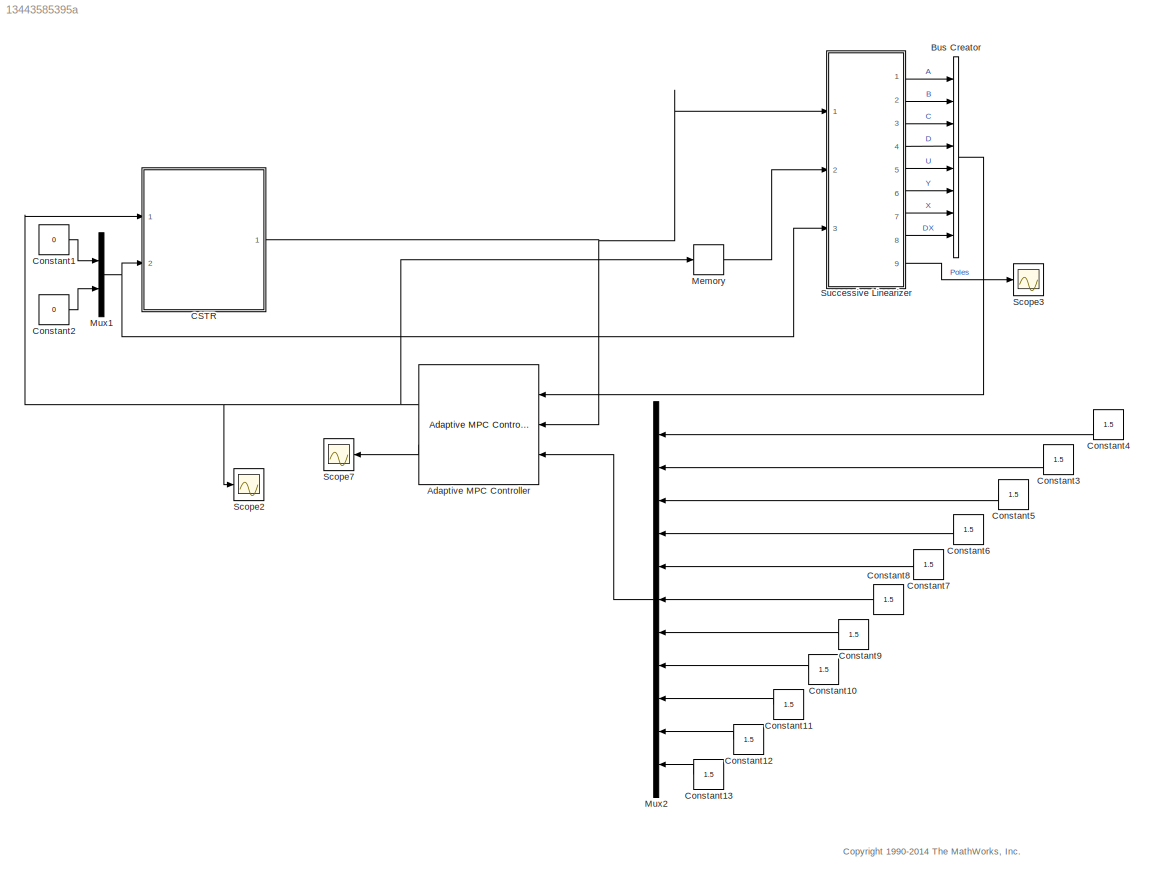
MODEL slx_13443585395a
KIND model
CONFIG AbsTol = auto
CONFIG EnableMultiTasking = off
CONFIG FixedStep = auto
CONFIG MaxStep = 0.5*Ts
CONFIG MinStep = auto
CONFIG RelTol = 1e-3
CONFIG SampleTimeConstraint = Unconstrained
CONFIG Solver = FixedStepAuto
CONFIG SolverName = FixedStepAuto
CONFIG StartTime = 0
CONFIG StopTime = 75
BLOCK [Reference] Adaptive MPC Controller  REF=mpclib/Adaptive MPC Controller  (lib defined in mdl_ae329e0e0455)
  Ports = [3, 2]
  SCDEnableBlockLinearizationSpecification = on
  SourceBlock = mpclib/Adaptive MPC Controller
  SourceProductBaseCode = MP
  SourceProductName = Model Predictive Control Toolbox
  SourceType = Adaptive MPC
BLOCK [BusCreator] Bus Creator
  DisplayOption = bar
  InheritFromInputs = on
  Inputs = 8
  Ports = [8, 1]
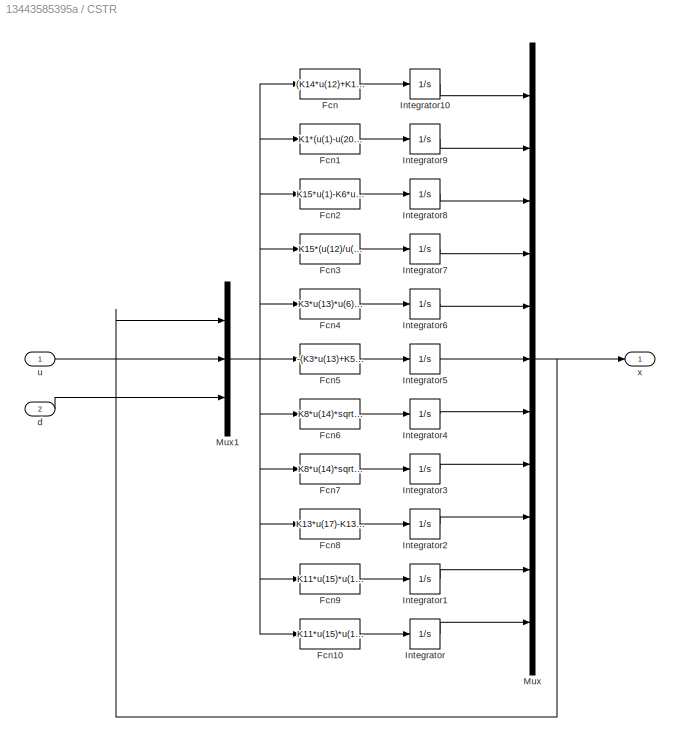
BLOCK [SubSystem] CSTR
  Ports = [2, 1]
  RequestExecContextInheritance = off
  Variant = off
BLOCK [Fcn] CSTR/Fcn
  Expr = (K14*u(12)+K1)*(u(20)-u(1))+K1*(u(8)-u(2))
BLOCK [Fcn] CSTR/Fcn1
  Expr = K1*(u(1)-u(20))+(K2*u(21)*sqrt(u(7))-K1)*(u(8)-u(2))
BLOCK [Fcn] CSTR/Fcn10
  Expr = K11*u(15)*u(1)-K11*u(15)*u(11)-K12*u(11)+K12*u(9)
BLOCK [Fcn] CSTR/Fcn2
  Expr = K15*u(1)-K6*u(14)*sqrt(u(3))
BLOCK [Fcn] CSTR/Fcn3
  Expr = K15*(u(12)/u(3))*u(1)-(K15*(u(12)/u(3))+K7/u(3))*u(4)+K7*u(6)/u(3)
BLOCK [Fcn] CSTR/Fcn4
  Expr = K3*u(13)*u(6)-K3*u(13)*u(5)+K4*u(16)
BLOCK [Fcn] CSTR/Fcn5
  Expr = -(K3*u(13)+K5)*u(6)+K3*u(13)*u(5)+K5*u(4)
BLOCK [Fcn] CSTR/Fcn6
  Expr = K8*u(14)*sqrt(u(3))-K9*u(21)*sqrt(u(7))
BLOCK [Fcn] CSTR/Fcn7
  Expr = K8*u(14)*sqrt((u(3))/u(7)*u(4)-K8*u(14)*sqrt(u(3))/u(7)*u(8)+K10*u(18)
BLOCK [Fcn] CSTR/Fcn8
  Expr = K13*u(17)-K13*u(18)+K13*u(19)
BLOCK [Fcn] CSTR/Fcn9
  Expr = K11*u(15)*u(11)-K11*u(15)*u(10)+K4*u(17)
BLOCK [Integrator] CSTR/Integrator
  Ports = [1, 1]
BLOCK [Integrator] CSTR/Integrator1
  Ports = [1, 1]
BLOCK [Integrator] CSTR/Integrator10
  Ports = [1, 1]
BLOCK [Integrator] CSTR/Integrator2
  Ports = [1, 1]
BLOCK [Integrator] CSTR/Integrator3
  Ports = [1, 1]
BLOCK [Integrator] CSTR/Integrator4
  Ports = [1, 1]
BLOCK [Integrator] CSTR/Integrator5
  Ports = [1, 1]
BLOCK [Integrator] CSTR/Integrator6
  Ports = [1, 1]
BLOCK [Integrator] CSTR/Integrator7
  Ports = [1, 1]
BLOCK [Integrator] CSTR/Integrator8
  Ports = [1, 1]
BLOCK [Integrator] CSTR/Integrator9
  Ports = [1, 1]
BLOCK [Mux] CSTR/Mux
  DisplayOption = bar
  Inputs = 11
  Ports = [11, 1]
BLOCK [Mux] CSTR/Mux1
  DisplayOption = bar
  Inputs = 3
  Ports = [3, 1]
BLOCK [Inport] CSTR/d
  IconDisplay = Port number
  Port = 2
BLOCK [Inport] CSTR/u
  IconDisplay = Port number
BLOCK [Outport] CSTR/x
  IconDisplay = Port number
BLOCK [Constant] Constant1
  Value = 0
BLOCK [Constant] Constant10
  Value = 1.5
BLOCK [Constant] Constant11
  Value = 1.5
BLOCK [Constant] Constant12
  Value = 1.5
BLOCK [Constant] Constant13
  Value = 1.5
BLOCK [Constant] Constant2
  Value = 0
BLOCK [Constant] Constant3
  Value = 1.5
BLOCK [Constant] Constant4
  Value = 1.5
BLOCK [Constant] Constant5
  Value = 1.5
BLOCK [Constant] Constant6
  Value = 1.5
BLOCK [Constant] Constant7
  Value = 1.5
BLOCK [Constant] Constant8
  Value = 1.5
BLOCK [Constant] Constant9
  Value = 1.5
BLOCK [Memory] Memory
  X0 = u0
BLOCK [Mux] Mux1
  DisplayOption = bar
  Inputs = 2
  Ports = [2, 1]
BLOCK [Mux] Mux2
  DisplayOption = bar
  Inputs = 11
  Ports = [11, 1]
BLOCK [Scope] Scope2
  NumInputPorts = 1
  Ports = [1]
  ScopeSpecificationString = Simulink.scopes.TimeScopeBlockCfg('CurrentConfiguration', extmgr.ConfigurationSet(extmgr.Configuration('Core','General UI',true),extmgr.Configuration('Core','Source UI',true),extmgr.Configuration('Sources','WiredSimulink',true,'DataLoggingVariableName','ScopeData2'),extmgr.Configuration('Visuals','Time Domain',true,'SerializedDisplays',{struct('MinYLimReal','-0.23174','MaxYLimReal','2.08568','YLab...<+1468ch>
BLOCK [Scope] Scope3
  NumInputPorts = 1
  Ports = [1]
  ScopeSpecificationString = Simulink.scopes.TimeScopeBlockCfg('CurrentConfiguration', extmgr.ConfigurationSet(extmgr.Configuration('Core','General UI',true),extmgr.Configuration('Core','Source UI',true),extmgr.Configuration('Sources','WiredSimulink',true,'DataLoggingVariableName','ScopeData1'),extmgr.Configuration('Visuals','Time Domain',true,'SerializedDisplays',{struct('MinYLimReal','0.75515','MaxYLimReal','1.02721','YLabe...<+1403ch>
BLOCK [Scope] Scope7
  NumInputPorts = 1
  Ports = [1]
  ScopeSpecificationString = Simulink.scopes.TimeScopeBlockCfg('CurrentConfiguration', extmgr.ConfigurationSet(extmgr.Configuration('Core','General UI',true),extmgr.Configuration('Core','Source UI',true),extmgr.Configuration('Sources','WiredSimulink',true,'DataLoggingVariableName','ScopeData1'),extmgr.Configuration('Visuals','Time Domain',true,'SerializedDisplays',{struct('MinYLimReal','-6.94325','MaxYLimReal','37.96247','YLa...<+1547ch>
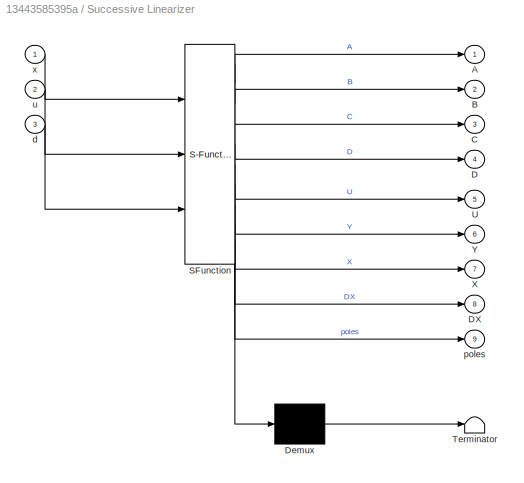
BLOCK [SubSystem] Successive Linearizer
  ErrorFcn = Stateflow.Translate.translate
  PermitHierarchicalResolution = ExplicitOnly
  Ports = [3, 9]
  RequestExecContextInheritance = off
  SFBlockType = MATLAB Function
  SystemSampleTime = Ts
  TreatAsAtomicUnit = on
  Variant = off
BLOCK [Demux] Successive Linearizer/ Demux 
  Outputs = 1
  Ports = [1, 1]
BLOCK [S-Function] Successive Linearizer/ SFunction 
  EnableBusSupport = on
  FunctionName = sf_sfun
  PortCounts = [3 10]
  Ports = [3, 10]
  SFcnIsStateOwnerBlock = off
  SFunctionDeploymentMode = off
  Tag = Stateflow S-Function AdaptiveControlBuilding 2
BLOCK [Terminator] Successive Linearizer/ Terminator 
BLOCK [Outport] Successive Linearizer/A
  IconDisplay = Port number
BLOCK [Outport] Successive Linearizer/B
  IconDisplay = Port number
  Port = 2
BLOCK [Outport] Successive Linearizer/C
  IconDisplay = Port number
  Port = 3
BLOCK [Outport] Successive Linearizer/D
  IconDisplay = Port number
  Port = 4
BLOCK [Outport] Successive Linearizer/DX
  IconDisplay = Port number
  Port = 8
BLOCK [Outport] Successive Linearizer/U
  IconDisplay = Port number
  Port = 5
BLOCK [Outport] Successive Linearizer/X
  IconDisplay = Port number
  Port = 7
BLOCK [Outport] Successive Linearizer/Y
  IconDisplay = Port number
  Port = 6
BLOCK [Inport] Successive Linearizer/d
  IconDisplay = Port number
  Port = 3
BLOCK [Outport] Successive Linearizer/poles
  IconDisplay = Port number
  Port = 9
BLOCK [Inport] Successive Linearizer/u
  IconDisplay = Port number
  Port = 2
BLOCK [Inport] Successive Linearizer/x
  IconDisplay = Port number
ANNOTATION (root): <copyright redacted>
NET Adaptive MPC Controller:1 -> CSTR:1, Memory:1, Scope2:1
LINE Adaptive MPC Controller:2 -> Scope7:1
LINE Bus Creator:1 -> Adaptive MPC Controller:1
LINE CSTR/Fcn10:1 -> CSTR/Integrator:1
LINE CSTR/Fcn1:1 -> CSTR/Integrator9:1
LINE CSTR/Fcn2:1 -> CSTR/Integrator8:1
LINE CSTR/Fcn3:1 -> CSTR/Integrator7:1
LINE CSTR/Fcn4:1 -> CSTR/Integrator6:1
LINE CSTR/Fcn5:1 -> CSTR/Integrator5:1
LINE CSTR/Fcn6:1 -> CSTR/Integrator4:1
LINE CSTR/Fcn7:1 -> CSTR/Integrator3:1
LINE CSTR/Fcn8:1 -> CSTR/Integrator2:1
LINE CSTR/Fcn9:1 -> CSTR/Integrator1:1
LINE CSTR/Fcn:1 -> CSTR/Integrator10:1
LINE CSTR/Integrator10:1 -> CSTR/Mux:1
LINE CSTR/Integrator1:1 -> CSTR/Mux:10
LINE CSTR/Integrator2:1 -> CSTR/Mux:9
LINE CSTR/Integrator3:1 -> CSTR/Mux:8
LINE CSTR/Integrator4:1 -> CSTR/Mux:7
LINE CSTR/Integrator5:1 -> CSTR/Mux:6
LINE CSTR/Integrator6:1 -> CSTR/Mux:5
LINE CSTR/Integrator7:1 -> CSTR/Mux:4
LINE CSTR/Integrator8:1 -> CSTR/Mux:3
LINE CSTR/Integrator9:1 -> CSTR/Mux:2
LINE CSTR/Integrator:1 -> CSTR/Mux:11
NET CSTR/Mux1:1 -> CSTR/Fcn10:1, CSTR/Fcn1:1, CSTR/Fcn2:1, CSTR/Fcn3:1, CSTR/Fcn4:1, CSTR/Fcn5:1, CSTR/Fcn6:1, CSTR/Fcn7:1, CSTR/Fcn8:1, CSTR/Fcn9:1, CSTR/Fcn:1
NET CSTR/Mux:1 -> CSTR/Mux1:1, CSTR/x:1
LINE CSTR/d:1 -> CSTR/Mux1:3
LINE CSTR/u:1 -> CSTR/Mux1:2
NET CSTR:1 -> Adaptive MPC Controller:2, Successive Linearizer:1
LINE Constant10:1 -> Mux2:8
LINE Constant11:1 -> Mux2:9
LINE Constant12:1 -> Mux2:10
LINE Constant13:1 -> Mux2:11
LINE Constant1:1 -> Mux1:1
LINE Constant2:1 -> Mux1:2
LINE Constant3:1 -> Mux2:2
LINE Constant4:1 -> Mux2:1
LINE Constant5:1 -> Mux2:3
LINE Constant6:1 -> Mux2:4
LINE Constant7:1 -> Mux2:5
LINE Constant8:1 -> Mux2:6
LINE Constant9:1 -> Mux2:7
LINE Memory:1 -> Successive Linearizer:2
NET Mux1:1 -> CSTR:2, Successive Linearizer:3
LINE Mux2:1 -> Adaptive MPC Controller:3
LINE Successive Linearizer:1 -> Bus Creator:1
LINE Successive Linearizer:2 -> Bus Creator:2
LINE Successive Linearizer:3 -> Bus Creator:3
LINE Successive Linearizer:4 -> Bus Creator:4
LINE Successive Linearizer:5 -> Bus Creator:5
LINE Successive Linearizer:6 -> Bus Creator:6
LINE Successive Linearizer:7 -> Bus Creator:7
LINE Successive Linearizer:8 -> Bus Creator:8
LINE Successive Linearizer:9 -> Scope3:1
note: NET lines group one-source signal fan-out (src -> all destinations, sorted); 1:1 wires keep LINE
CHART Successive Linearizer states=1 transitions=1
  STATE_LABEL 'eML_blk_kernel()'
  STATE_LABEL 'SCRIPT:\n% function [A, B, C, D, U, Y, X, DX, poles] = fcn(x1, x2, u1, u2)\n% %#codegen\n% \n% % Define constant outputs\n% C = eye(2);\n% D = zeros(2,2);\n% % Nominal U are obtained from measurements\n% U = [u1; u2];\n% % Nominal X and Y are obtained from estimated MPC states\n% Y = [x1; x2];\n% X = [x1; x2];\n% % Analytical linearization of mechanistic CSTR model (continuous time)\n% \n% %%%%%%%%%%%%%%%%%%%%%...<+3608ch>'
